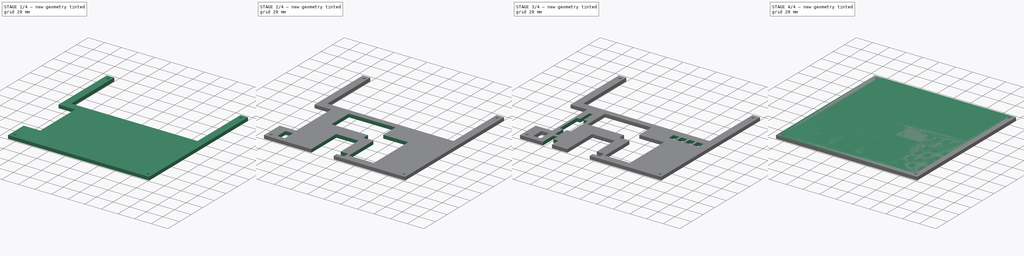
[diagram: build sequence overview — one tinted view per stage of 4, left to right]
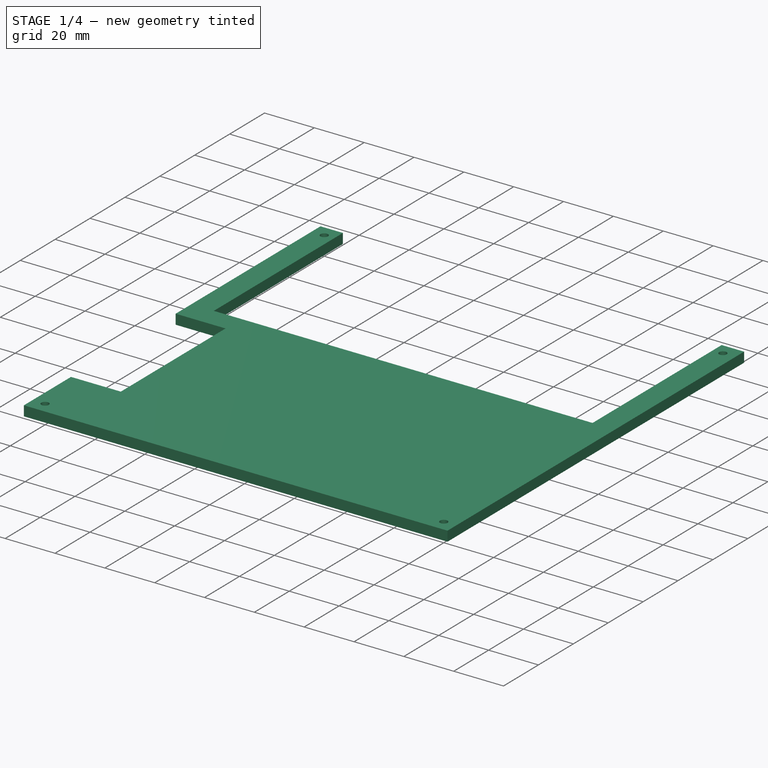
[diagram: stage 1 of 4 — iso view after this stage's code; geometry added in this stage tinted green]
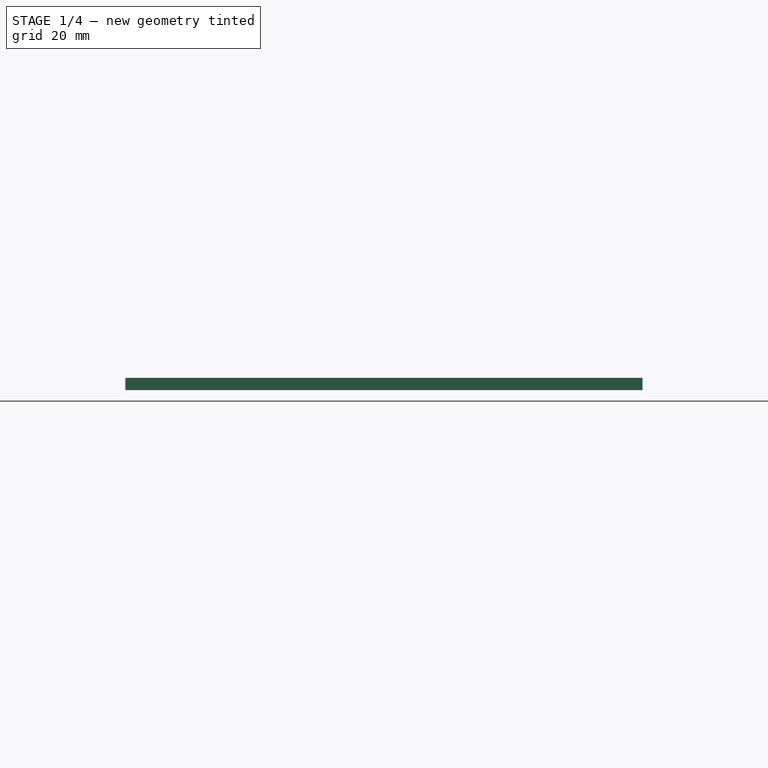
[diagram: stage 1 of 4 — front view after this stage's code; geometry added in this stage tinted green]
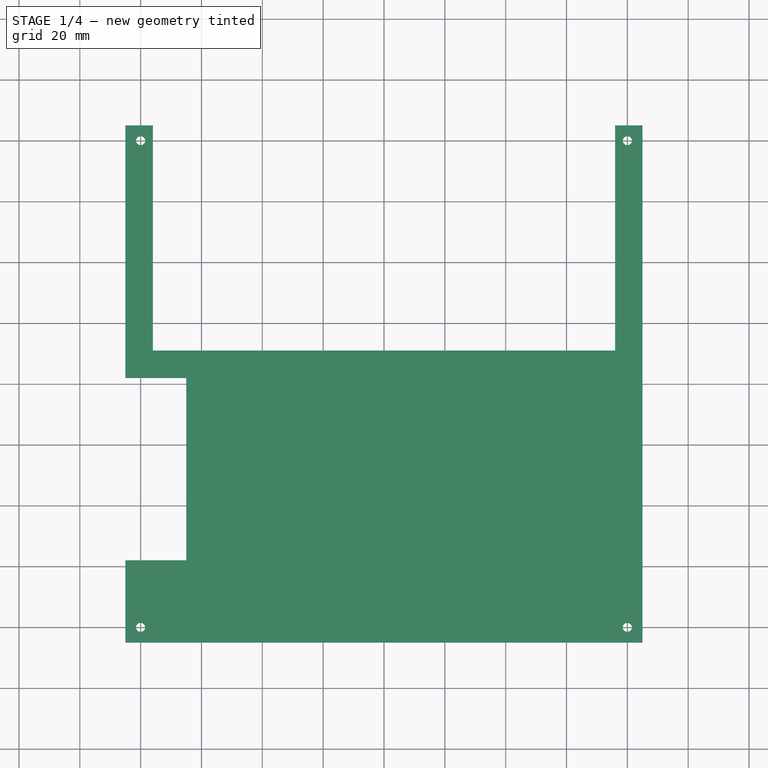
[diagram: stage 1 of 4 — top view after this stage's code; geometry added in this stage tinted green]
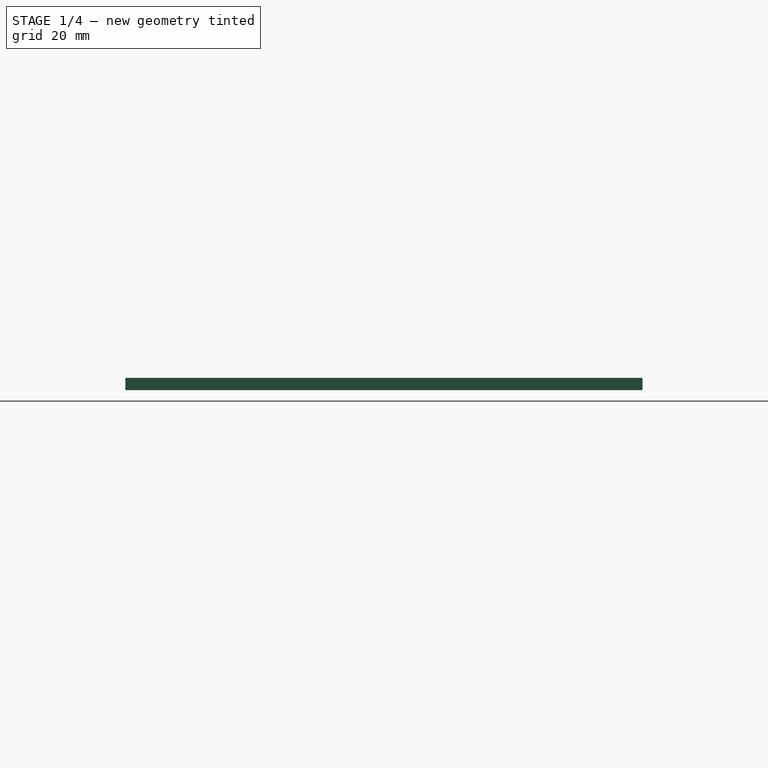
[diagram: stage 1 of 4 — right view after this stage's code; geometry added in this stage tinted green]
FCSTD DOCUMENT  (FreeCAD 0.21R33668 +26 (Git))
Label: AudioController
License: All rights reserved
LicenseURL: https://en.wikipedia.org/wiki/All_rights_reserved
objects: Sketcher::SketchObject×14, PartDesign::Pocket×12, PartDesign::Pad×2, PartDesign::Body×2, Part::Part2DObjectPython×2
note: 46 computed .brp shape members not serialized (recipe doc carries the construction recipe); baked Part::Feature solids carry a one-line shape summary decoded from their .brp

FEATURE [PartDesign::Body] Body  label="Bottom"
  Group = -> [Sketch,Pad,Sketch001,Pocket]
  Origin = -> Origin
  Tip = -> Pocket
FEATURE [Sketcher::SketchObject] Sketch002
  FullyConstrained = true
  MapMode = 5
  Support = -> [XY_Plane001]
  sketch-geometry (4):
    g0: LineSegment StartX=-85 StartY=85 StartZ=0 EndX=85 EndY=85 EndZ=0
    g1: LineSegment StartX=85 StartY=85 StartZ=0 EndX=85 EndY=-85 EndZ=0
    g2: LineSegment StartX=85 StartY=-85 StartZ=0 EndX=-85 EndY=-85 EndZ=0
    g3: LineSegment StartX=-85 StartY=-85 StartZ=0 EndX=-85 EndY=85 EndZ=0
  constraints (10):
    c: Coincident(g0,g1)
    c: Coincident(g1,g2)
    c: Coincident(g2,g3)
    c: Coincident(g3,g0)
    c: Horizontal(g2)
    c: Vertical(g1)
    c: Symmetric(g0,g2,g-1)
    c: Symmetric(g0,g0,g-2)
    c: Equal(g0,g3)
    c: DistanceX(g0,g0) = 170
FEATURE [PartDesign::Pad] Pad001
  Direction = (0,0,1)
  Length = 4
  Length2 = 10
  Profile = -> Sketch002
  ReferenceAxis = -> Sketch002 [N_Axis]
  Type = 0
FEATURE [Sketcher::SketchObject] Sketch003
  FullyConstrained = true
  MapMode = 5
  Placement = pos=(0,0,4) rot=(0,0,1;0rad)
  Support = -> [Pad001]
  sketch-geometry (4):
    g0: Circle CenterX=-80 CenterY=80 CenterZ=0 NormalX=0 NormalY=0 NormalZ=1 AngleXU=0 Radius=1.5
    g1: Circle CenterX=80 CenterY=80 CenterZ=0 NormalX=0 NormalY=0 NormalZ=1 AngleXU=0 Radius=1.5
    g2: Circle CenterX=80 CenterY=-80 CenterZ=0 NormalX=0 NormalY=0 NormalZ=1 AngleXU=0 Radius=1.5
    g3: Circle CenterX=-80 CenterY=-80 CenterZ=0 NormalX=0 NormalY=0 NormalZ=1 AngleXU=0 Radius=1.5
  constraints (9):
    c: Symmetric(g0,g3,g-1)
    c: Symmetric(g1,g0,g-2)
    c: Symmetric(g2,g3,g-2)
    c: Equal(g3,g2)
    c: Equal(g3,g1)
    c: Equal(g3,g0)
    c: Diameter(g3) = 3
    c: DistanceX(g0,g1) = 160
    c: DistanceY(g3,g0) = 160
FEATURE [PartDesign::Pocket] Pocket001
  BaseFeature = -> Pad001
  Direction = (0,0,-1)
  Length = 0
  Length2 = 5
  Profile = -> Sketch003
  ReferenceAxis = -> Sketch003 [N_Axis]
  Type = 3
  UpToFace = -> Pad001 [Face5]
FEATURE [Sketcher::SketchObject] Sketch004
  ExternalGeometry = -> [Pocket001]
  FullyConstrained = true
  MapMode = 5
  Placement = pos=(0,0,4) rot=(0,0,1;0rad)
  Support = -> [Pocket001]
  sketch-geometry (4):
    g0: LineSegment StartX=76 StartY=85 StartZ=0 EndX=-76 EndY=85 EndZ=0
    g1: LineSegment StartX=-76 StartY=85 StartZ=0 EndX=-76 EndY=11 EndZ=0
    g2: LineSegment StartX=76 StartY=85 StartZ=0 EndX=76 EndY=11 EndZ=0
    g3: LineSegment StartX=-76 StartY=11 StartZ=0 EndX=76 EndY=11 EndZ=0
  constraints (11):
    c: PointOnObject(g0,g-3)
    c: Coincident(g1,g0)
    c: Vertical(g1)
    c: Coincident(g2,g0)
    c: Vertical(g2)
    c: Coincident(g3,g1)
    c: Coincident(g3,g2)
    c: Horizontal(g3)
    c: DistanceX(g0,g0) = 152
    c: DistanceY(g2,g2) = 74
    c: Symmetric(g0,g0,g-2)
FEATURE [PartDesign::Pocket] Pocket002  label="SpeakerCutout"
  BaseFeature = -> Pocket001
  Direction = (0,0,-1)
  Length = 0
  Length2 = 5
  Profile = -> Sketch004
  ReferenceAxis = -> Sketch004 [N_Axis]
  Type = 3
  UpToFace = -> Pocket001 [Face4]
FEATURE [Sketcher::SketchObject] Sketch005
  ExternalGeometry = -> [Pocket002]
  FullyConstrained = true
  MapMode = 5
  Placement = pos=(0,0,4) rot=(0,0,1;0rad)
  Support = -> [Pocket002]
  sketch-geometry (4):
    g0: LineSegment StartX=-85 StartY=2 StartZ=0 EndX=-65 EndY=2 EndZ=0
    g1: LineSegment StartX=-65 StartY=2 StartZ=0 EndX=-65 EndY=-58 EndZ=0
    g2: LineSegment StartX=-65 StartY=-58 StartZ=0 EndX=-85 EndY=-58 EndZ=0
    g3: LineSegment StartX=-85 StartY=-58 StartZ=0 EndX=-85 EndY=2 EndZ=0
  constraints (12):
    c: Coincident(g0,g1)
    c: Coincident(g1,g2)
    c: Coincident(g2,g3)
    c: Coincident(g3,g0)
    c: Horizontal(g0)
    c: Horizontal(g2)
    c: Vertical(g1)
    c: Vertical(g3)
    c: PointOnObject(g0,g-3)
    c: DistanceY(g3,g3) = 60
    c: DistanceX(g0,g0) = 20
    c: DistanceY(g-3,g2) = 27
FEATURE [PartDesign::Pocket] Pocket003  label="BNCMisoMosiCutout"
  BaseFeature = -> Pocket002
  Direction = (0,0,-1)
  Length = 0
  Length2 = 5
  Profile = -> Sketch005
  ReferenceAxis = -> Sketch005 [N_Axis]
  Type = 3
  UpToFace = -> Pocket002 [Face2]
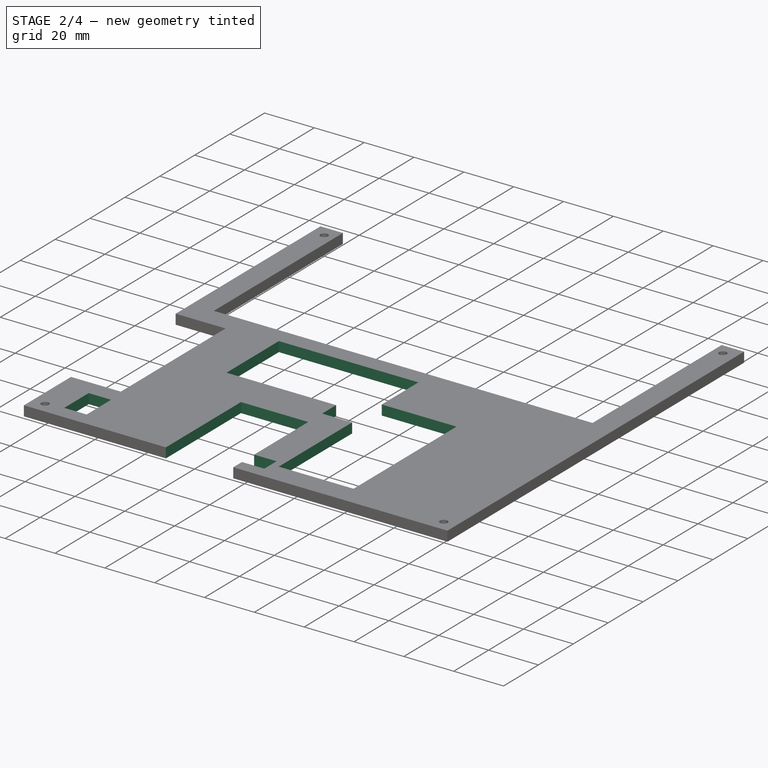
[diagram: stage 2 of 4 — iso view after this stage's code; geometry added in this stage tinted green]
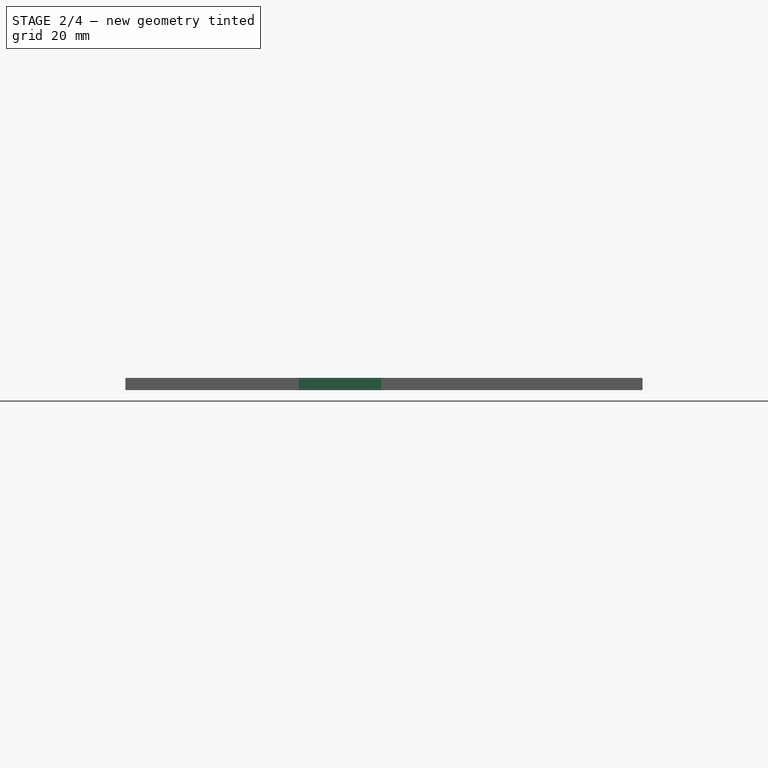
[diagram: stage 2 of 4 — front view after this stage's code; geometry added in this stage tinted green]
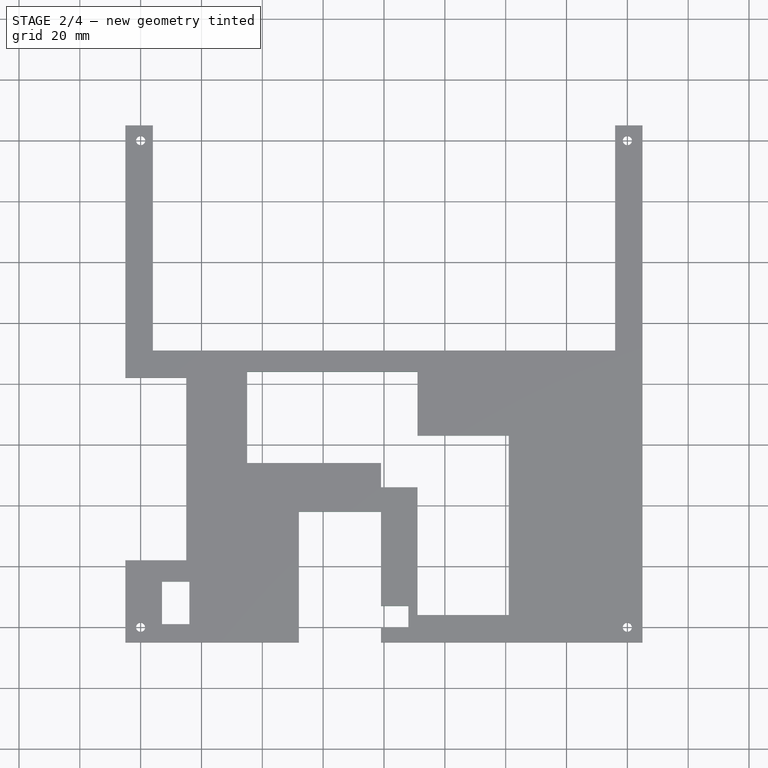
[diagram: stage 2 of 4 — top view after this stage's code; geometry added in this stage tinted green]
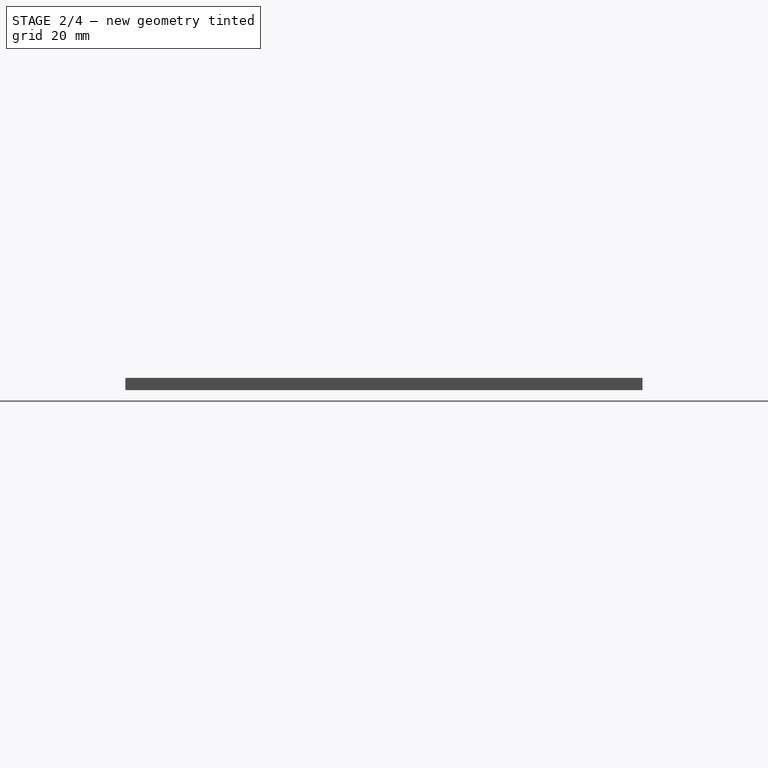
[diagram: stage 2 of 4 — right view after this stage's code; geometry added in this stage tinted green]
FEATURE [Sketcher::SketchObject] Sketch006
  ExternalGeometry = -> [Pocket003]
  FullyConstrained = true
  MapMode = 5
  Placement = pos=(0,0,4) rot=(0,0,1;0rad)
  Support = -> [Pocket003]
  sketch-geometry (4):
    g0: LineSegment StartX=-73 StartY=-65 StartZ=0 EndX=-64 EndY=-65 EndZ=0
    g1: LineSegment StartX=-64 StartY=-65 StartZ=0 EndX=-64 EndY=-79 EndZ=0
    g2: LineSegment StartX=-64 StartY=-79 StartZ=0 EndX=-73 EndY=-79 EndZ=0
    g3: LineSegment StartX=-73 StartY=-79 StartZ=0 EndX=-73 EndY=-65 EndZ=0
  constraints (12):
    c: Coincident(g0,g1)
    c: Coincident(g1,g2)
    c: Coincident(g2,g3)
    c: Coincident(g3,g0)
    c: Horizontal(g0)
    c: Horizontal(g2)
    c: Vertical(g1)
    c: Vertical(g3)
    c: DistanceX(g0,g0) = 9
    c: DistanceY(g1,g1) = 14
    c: DistanceY(g-4,g2) = 6
    c: DistanceX(g-4,g2) = 12
FEATURE [PartDesign::Pocket] Pocket004  label="SwitchCutout"
  BaseFeature = -> Pocket003
  Direction = (0,0,-1)
  Length = 0
  Length2 = 5
  Profile = -> Sketch006
  ReferenceAxis = -> Sketch006 [N_Axis]
  Type = 3
  UpToFace = -> Pocket003 [Face2]
FEATURE [Sketcher::SketchObject] Sketch007
  ExternalGeometry = -> [Pocket004]
  FullyConstrained = true
  MapMode = 5
  Placement = pos=(0,0,4) rot=(0,0,1;0rad)
  Support = -> [Pocket004]
  sketch-geometry (10):
    g0: LineSegment StartX=11 StartY=-76 StartZ=0 EndX=41 EndY=-76 EndZ=0
    g1: LineSegment StartX=41 StartY=-76 StartZ=0 EndX=41 EndY=-17 EndZ=0
    g2: LineSegment StartX=41 StartY=-17 StartZ=0 EndX=11 EndY=-17 EndZ=0
    g3: LineSegment StartX=11 StartY=-17 StartZ=0 EndX=11 EndY=4 EndZ=0
    g4: LineSegment StartX=11 StartY=4 StartZ=0 EndX=-45 EndY=4 EndZ=0
    g5: LineSegment StartX=-45 StartY=4 StartZ=0 EndX=-45 EndY=-26 EndZ=0
    g6: LineSegment StartX=-45 StartY=-26 StartZ=0 EndX=-1 EndY=-26 EndZ=0
    g7: LineSegment StartX=-1 StartY=-26 StartZ=0 EndX=-1 EndY=-34 EndZ=0
    g8: LineSegment StartX=-1 StartY=-34 StartZ=0 EndX=11 EndY=-34 EndZ=0
    g9: LineSegment StartX=11 StartY=-34 StartZ=0 EndX=11 EndY=-76 EndZ=0
  constraints (30):
    c: Horizontal(g0)
    c: Coincident(g1,g0)
    c: Vertical(g1)
    c: Coincident(g2,g1)
    c: Horizontal(g2)
    c: Coincident(g3,g2)
    c: Vertical(g3)
    c: Coincident(g4,g3)
    c: Horizontal(g4)
    c: Coincident(g5,g4)
    c: Vertical(g5)
    c: Coincident(g6,g5)
    c: Horizontal(g6)
    c: Coincident(g7,g6)
    c: Vertical(g7)
    c: Coincident(g8,g7)
    c: Horizontal(g8)
    c: Coincident(g9,g8)
    c: Coincident(g9,g0)
    c: Vertical(g9)
    c: Equal(g2,g0)
    c: DistanceX(g4,g4) = 56
    c: DistanceY(g1,g1) = 59
    c: DistanceX(g0,g0) = 30
    c: DistanceY(g5,g5) = 30
    c: DistanceY(g7,g7) = 8
    c: DistanceX(g8,g8) = 12
    c: DistanceX(g0,g-3) = 44
    c: DistanceY(g-3,g0) = 9
    c: DistanceY(g3,g3) = 21
FEATURE [PartDesign::Pocket] Pocket005  label="ESPCutout"
  BaseFeature = -> Pocket004
  Direction = (0,0,-1)
  Length = 0
  Length2 = 5
  Profile = -> Sketch007
  ReferenceAxis = -> Sketch007 [N_Axis]
  Type = 3
  UpToFace = -> Pocket004 [Face2]
FEATURE [Sketcher::SketchObject] Sketch008
  ExternalGeometry = -> [Pocket005]
  FullyConstrained = true
  MapMode = 5
  Placement = pos=(0,0,4) rot=(0,0,1;0rad)
  Support = -> [Pocket005]
  sketch-geometry (8):
    g0: LineSegment StartX=-28 StartY=-85 StartZ=0 EndX=-1 EndY=-85 EndZ=0
    g1: LineSegment StartX=-1 StartY=-85 StartZ=0 EndX=-1 EndY=-80 EndZ=0
    g2: LineSegment StartX=-1 StartY=-80 StartZ=0 EndX=8 EndY=-80 EndZ=0
    g3: LineSegment StartX=8 StartY=-80 StartZ=0 EndX=8 EndY=-73 EndZ=0
    g4: LineSegment StartX=8 StartY=-73 StartZ=0 EndX=-1 EndY=-73 EndZ=0
    g5: LineSegment StartX=-1 StartY=-73 StartZ=0 EndX=-1 EndY=-42 EndZ=0
    g6: LineSegment StartX=-1 StartY=-42 StartZ=0 EndX=-28 EndY=-42 EndZ=0
    g7: LineSegment StartX=-28 StartY=-42 StartZ=0 EndX=-28 EndY=-85 EndZ=0
  constraints (24):
    c: PointOnObject(g0,g-3)
    c: Horizontal(g0)
    c: Coincident(g1,g0)
    c: Vertical(g1)
    c: Coincident(g2,g1)
    c: Horizontal(g2)
    c: Coincident(g3,g2)
    c: Vertical(g3)
    c: Coincident(g4,g3)
    c: Horizontal(g4)
    c: Coincident(g5,g4)
    c: Vertical(g5)
    c: Coincident(g6,g5)
    c: Horizontal(g6)
    c: Coincident(g7,g6)
    c: Coincident(g7,g0)
    c: Vertical(g7)
    c: Equal(g0,g6)
    c: DistanceX(g0,g0) = 27
    c: DistanceY(g7,g7) = 43
    c: DistanceX(g4,g4) = 9
    c: DistanceY(g3,g3) = 7
    c: DistanceY(g1,g1) = 5
    c: DistanceX(g-3,g0) = 57
FEATURE [PartDesign::Pocket] Pocket006  label="SDCardCutout"
  BaseFeature = -> Pocket005
  Direction = (0,0,-1)
  Length = 0
  Length2 = 5
  Profile = -> Sketch008
  ReferenceAxis = -> Sketch008 [N_Axis]
  Type = 3
  UpToFace = -> Pocket005 [Face2]
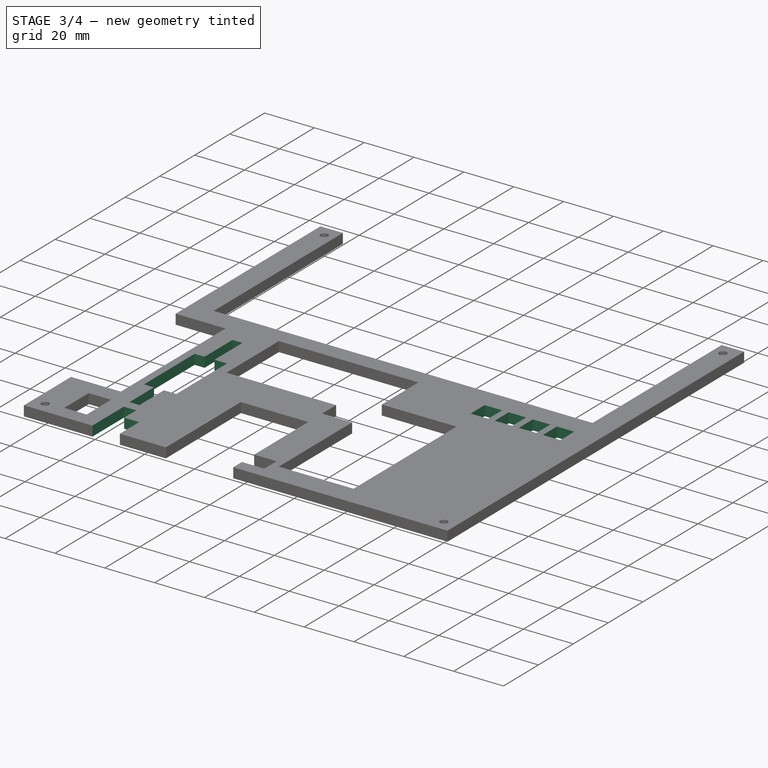
[diagram: stage 3 of 4 — iso view after this stage's code; geometry added in this stage tinted green]
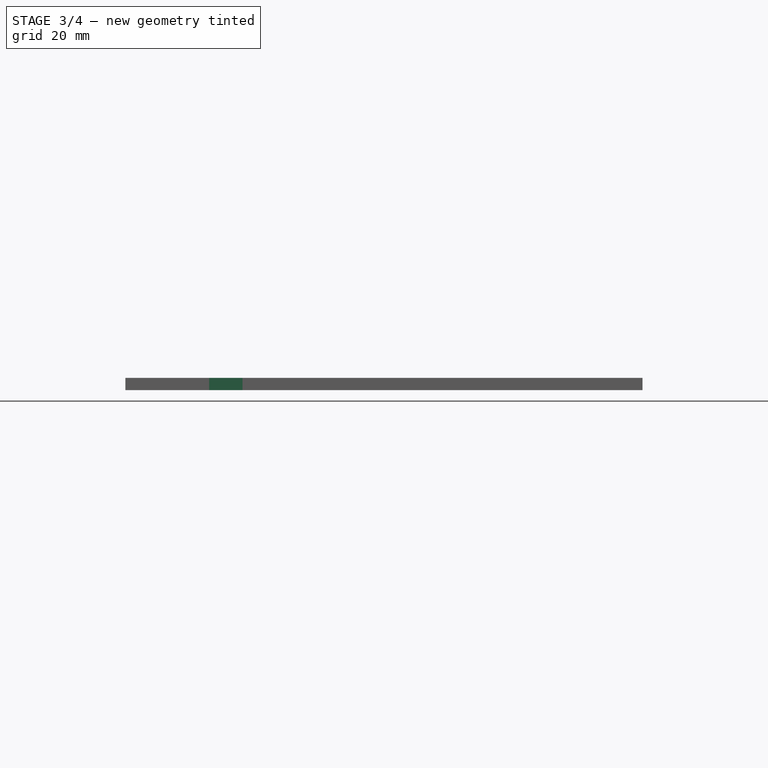
[diagram: stage 3 of 4 — front view after this stage's code; geometry added in this stage tinted green]
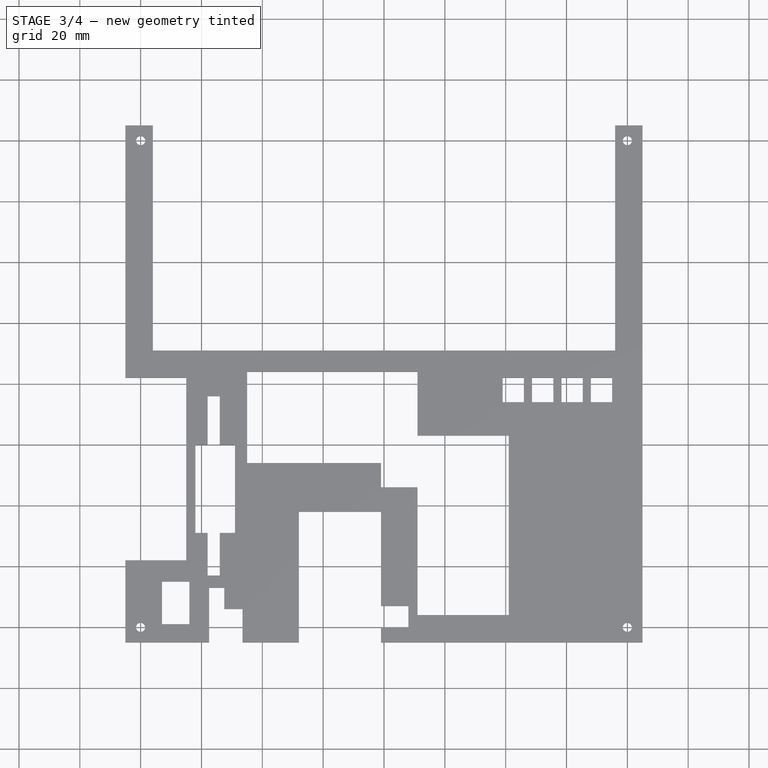
[diagram: stage 3 of 4 — top view after this stage's code; geometry added in this stage tinted green]
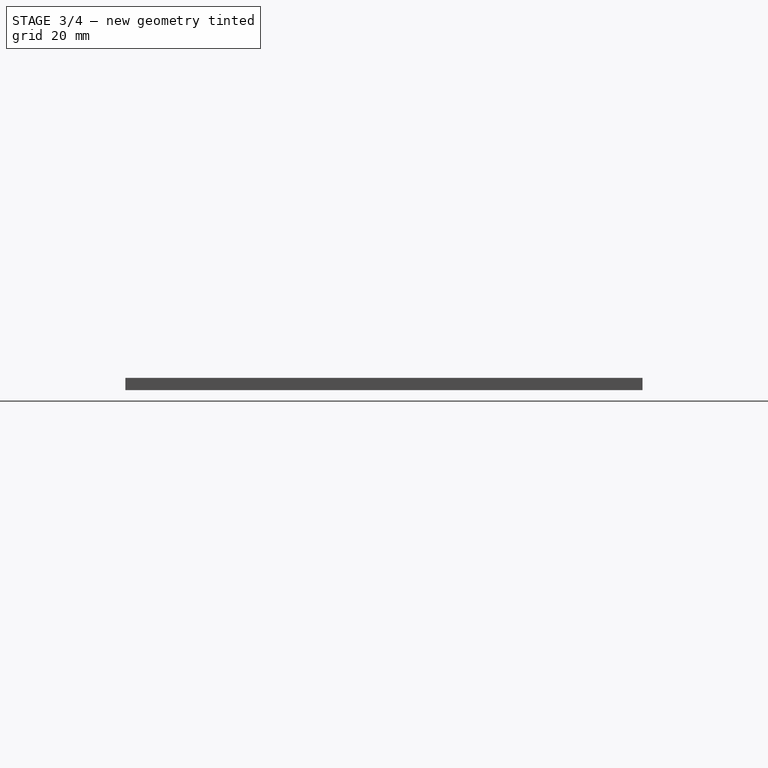
[diagram: stage 3 of 4 — right view after this stage's code; geometry added in this stage tinted green]
FEATURE [Sketcher::SketchObject] Sketch009
  ExternalGeometry = -> [Pocket006]
  FullyConstrained = true
  MapMode = 5
  Placement = pos=(0,0,4) rot=(0,0,1;0rad)
  Support = -> [Pocket006]
  sketch-geometry (6):
    g0: LineSegment StartX=-46.5 StartY=-85 StartZ=0 EndX=-57.5 EndY=-85 EndZ=0
    g1: LineSegment StartX=-57.5 StartY=-85 StartZ=0 EndX=-57.5 EndY=-67 EndZ=0
    g2: LineSegment StartX=-57.5 StartY=-67 StartZ=0 EndX=-52.5 EndY=-67 EndZ=0
    g3: LineSegment StartX=-52.5 StartY=-67 StartZ=0 EndX=-52.5 EndY=-74 EndZ=0
    g4: LineSegment StartX=-52.5 StartY=-74 StartZ=0 EndX=-46.5 EndY=-74 EndZ=0
    g5: LineSegment StartX=-46.5 StartY=-74 StartZ=0 EndX=-46.5 EndY=-85 EndZ=0
  constraints (18):
    c: PointOnObject(g0,g-3)
    c: Horizontal(g0)
    c: Coincident(g1,g0)
    c: Vertical(g1)
    c: Coincident(g2,g1)
    c: Horizontal(g2)
    c: Coincident(g3,g2)
    c: Vertical(g3)
    c: Coincident(g4,g3)
    c: Horizontal(g4)
    c: Coincident(g5,g4)
    c: Coincident(g5,g0)
    c: Vertical(g5)
    c: DistanceX(g0,g0) = 11
    c: DistanceY(g5,g5) = 11
    c: DistanceY(g1,g1) = 18
    c: DistanceX(g2,g2) = 5
    c: DistanceX(g-3,g0) = 27.5
FEATURE [PartDesign::Pocket] Pocket007  label="PowerSocketCutout"
  BaseFeature = -> Pocket006
  Direction = (0,0,-1)
  Length = 0
  Length2 = 5
  Profile = -> Sketch009
  ReferenceAxis = -> Sketch009 [N_Axis]
  Type = 3
  UpToFace = -> Pocket006 [Face2]
FEATURE [Sketcher::SketchObject] Sketch010
  ExternalGeometry = -> [Pocket007]
  FullyConstrained = true
  MapMode = 5
  Placement = pos=(0,0,4) rot=(0,0,1;0rad)
  Support = -> [Pocket007]
  sketch-geometry (12):
    g0: LineSegment StartX=-58 StartY=-4 StartZ=0 EndX=-54 EndY=-4 EndZ=0
    g1: LineSegment StartX=-58 StartY=-4 StartZ=0 EndX=-58 EndY=-20 EndZ=0
    g2: LineSegment StartX=-58 StartY=-20 StartZ=0 EndX=-62 EndY=-20 EndZ=0
    g3: LineSegment StartX=-62 StartY=-20 StartZ=0 EndX=-62 EndY=-49 EndZ=0
    g4: LineSegment StartX=-62 StartY=-49 StartZ=0 EndX=-58 EndY=-49 EndZ=0
    g5: LineSegment StartX=-58 StartY=-49 StartZ=0 EndX=-58 EndY=-63 EndZ=0
    g6: LineSegment StartX=-58 StartY=-63 StartZ=0 EndX=-54 EndY=-63 EndZ=0
    g7: LineSegment StartX=-54 StartY=-63 StartZ=0 EndX=-54 EndY=-49 EndZ=0
    g8: LineSegment StartX=-54 StartY=-49 StartZ=0 EndX=-49 EndY=-49 EndZ=0
    g9: LineSegment StartX=-49 StartY=-49 StartZ=0 EndX=-49 EndY=-20 EndZ=0
    g10: LineSegment StartX=-49 StartY=-20 StartZ=0 EndX=-54 EndY=-20 EndZ=0
    g11: LineSegment StartX=-54 StartY=-20 StartZ=0 EndX=-54 EndY=-4 EndZ=0
  constraints (36):
    c: Horizontal(g0)
    c: Coincident(g1,g0)
    c: Vertical(g1)
    c: Coincident(g2,g1)
    c: Horizontal(g2)
    c: Vertical(g3)
    c: Coincident(g4,g3)
    c: Horizontal(g4)
    c: Coincident(g5,g4)
    c: Vertical(g5)
    c: Coincident(g6,g5)
    c: Horizontal(g6)
    c: Coincident(g7,g6)
    c: Vertical(g7)
    c: Coincident(g8,g7)
    c: Coincident(g9,g8)
    c: Vertical(g9)
    c: Coincident(g10,g9)
    c: Coincident(g11,g0)
    c: Coincident(g11,g10)
    c: Vertical(g11)
    c: Coincident(g3,g2)
    c: Equal(g3,g9)
    c: Equal(g0,g6)
    c: Equal(g2,g4)
    c: Equal(g11,g1)
    c: DistanceX(g6,g6) = 4
    c: DistanceX(g3,g8) = 13
    c: DistanceY(g7,g7) = 14
    c: DistanceY(g11,g11) = 16
    c: DistanceY(g9,g9) = 29
    c: DistanceY(g-3,g3) = 36
    c: DistanceX(g-3,g3) = 23
    c: Equal(g10,g8)
    c: Horizontal(g10)
    c: DistanceX(g-3,g4) = 27
FEATURE [PartDesign::Pocket] Pocket008  label="HeaderLoadResCutout"
  BaseFeature = -> Pocket007
  Direction = (0,0,-1)
  Length = 0
  Length2 = 5
  Profile = -> Sketch010
  ReferenceAxis = -> Sketch010 [N_Axis]
  Type = 3
  UpToFace = -> Pocket007 [Face2]
FEATURE [Sketcher::SketchObject] Sketch011
  ExternalGeometry = -> [Pocket008]
  FullyConstrained = false
  MapMode = 5
  Placement = pos=(0,0,4) rot=(0,0,1;0rad)
  Support = -> [Pocket008]
  sketch-geometry (20):
    g0: LineSegment StartX=68 StartY=2 StartZ=0 EndX=75 EndY=2 EndZ=0
    g1: LineSegment StartX=75 StartY=2 StartZ=0 EndX=75 EndY=-6 EndZ=0
    g2: LineSegment StartX=75 StartY=-6 StartZ=0 EndX=68 EndY=-6 EndZ=0
    g3: LineSegment StartX=68 StartY=-6 StartZ=0 EndX=68 EndY=2 EndZ=0
    g4: LineSegment StartX=58.3333 StartY=2 StartZ=0 EndX=65.3333 EndY=2 EndZ=0
    g5: LineSegment StartX=65.3333 StartY=2 StartZ=0 EndX=65.3333 EndY=-6 EndZ=0
    g6: LineSegment StartX=65.3333 StartY=-6 StartZ=0 EndX=58.3333 EndY=-6 EndZ=0
    g7: LineSegment StartX=58.3333 StartY=-6 StartZ=0 EndX=58.3333 EndY=2 EndZ=0
    g8: LineSegment StartX=48.6667 StartY=2 StartZ=0 EndX=55.6667 EndY=2 EndZ=0
    g9: LineSegment StartX=55.6667 StartY=2 StartZ=0 EndX=55.6667 EndY=-6 EndZ=0
    g10: LineSegment StartX=55.6667 StartY=-6 StartZ=0 EndX=48.6667 EndY=-6 EndZ=0
    g11: LineSegment StartX=48.6667 StartY=-6 StartZ=0 EndX=48.6667 EndY=2 EndZ=0
    g12: LineSegment StartX=39 StartY=2 StartZ=0 EndX=46 EndY=2 EndZ=0
    g13: LineSegment StartX=46 StartY=2 StartZ=0 EndX=46 EndY=-6 EndZ=0
    g14: LineSegment StartX=46 StartY=-6 StartZ=0 EndX=39 EndY=-6 EndZ=0
    g15: LineSegment StartX=39 StartY=-6 StartZ=0 EndX=39 EndY=2 EndZ=0
    g16: LineSegment StartX=19.83 StartY=-2 StartZ=0 EndX=80.543 EndY=-2 EndZ=0
    g17: LineSegment StartX=46 StartY=2 StartZ=0 EndX=48.6667 EndY=2 EndZ=0
    g18: LineSegment StartX=55.6667 StartY=2 StartZ=0 EndX=58.3333 EndY=2 EndZ=0
    g19: LineSegment StartX=65.3333 StartY=2 StartZ=0 EndX=68 EndY=2 EndZ=0
  constraints (52):
    c: Coincident(g0,g1)
    c: Coincident(g1,g2)
    c: Coincident(g2,g3)
    c: Coincident(g3,g0)
    c: Horizontal(g0)
    c: Horizontal(g2)
    c: Vertical(g1)
    c: Coincident(g4,g5)
    c: Coincident(g5,g6)
    c: Coincident(g6,g7)
    c: Coincident(g7,g4)
    c: Horizontal(g4)
    c: Horizontal(g6)
    c: Vertical(g5)
    c: Coincident(g8,g9)
    c: Coincident(g9,g10)
    c: Coincident(g10,g11)
    c: Coincident(g11,g8)
    c: Horizontal(g8)
    c: Horizontal(g10)
    c: Vertical(g9)
    c: Coincident(g12,g13)
    c: Coincident(g13,g14)
    c: Coincident(g14,g15)
    c: Coincident(g15,g12)
    c: Horizontal(g12)
    c: Horizontal(g14)
    c: Vertical(g13)
    c: Horizontal(g16)
    c: Symmetric(g12,g14,g16)
    c: Symmetric(g8,g10,g16)
    c: Symmetric(g4,g6,g16)
    c: Symmetric(g0,g2,g16)
    c: Coincident(g17,g12)
    c: Coincident(g17,g8)
    c: Coincident(g18,g8)
    c: Coincident(g18,g4)
    c: Coincident(g19,g4)
    c: Coincident(g19,g0)
    c: DistanceY(g1,g1) = 8
    c: DistanceY(g-3,g16) = 83
    c: DistanceX(g12,g-3) = 46
    c: DistanceX(g0,g-3) = 10
    c: Equal(g18,g19)
    c: Equal(g19,g17)
    c: Equal(g10,g14)
    c: Equal(g14,g6)
    c: Equal(g6,g2)
    c: DistanceX(g10,g10) = 7
    c: Equal(g3,g7)
    c: Equal(g7,g11)
    c: Equal(g11,g15)
FEATURE [PartDesign::Pocket] Pocket009  label="LedPlayerCutout"
  BaseFeature = -> Pocket008
  Direction = (0,0,-1)
  Length = 0
  Length2 = 5
  Profile = -> Sketch011
  ReferenceAxis = -> Sketch011 [N_Axis]
  Type = 3
  UpToFace = -> Pocket008 [Face2]
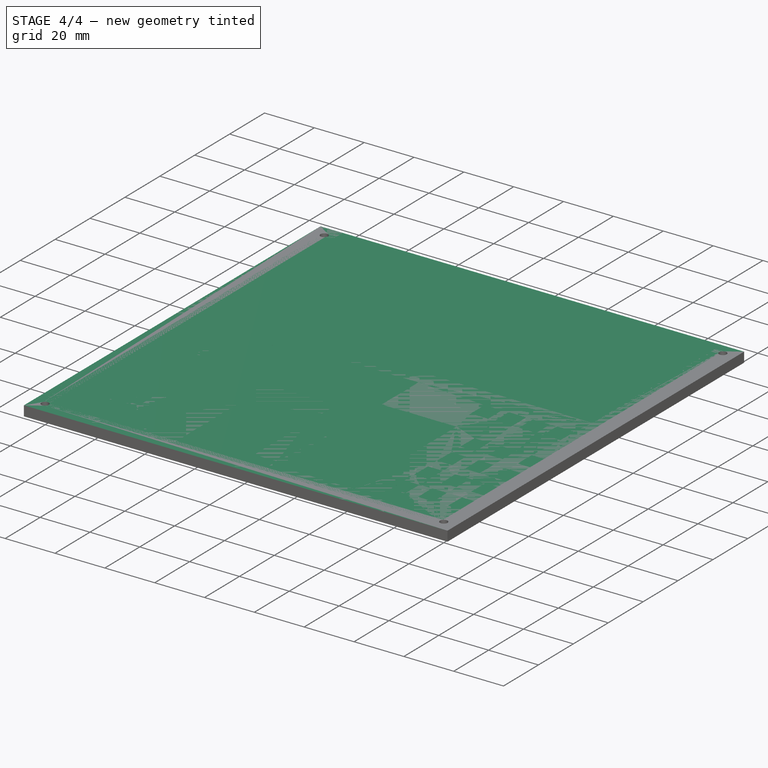
[diagram: stage 4 of 4 — iso view after this stage's code; geometry added in this stage tinted green]
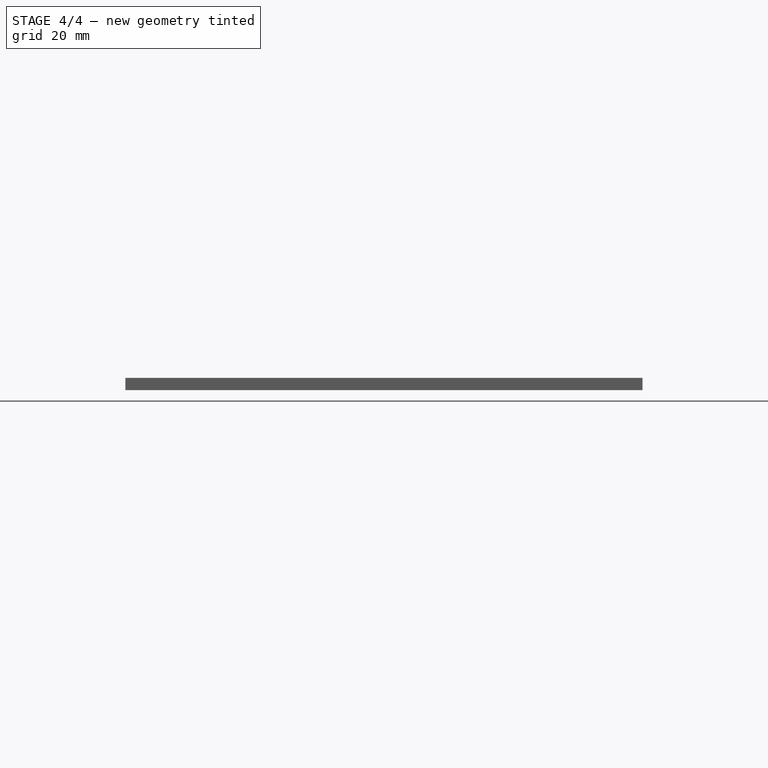
[diagram: stage 4 of 4 — front view after this stage's code; geometry added in this stage tinted green]
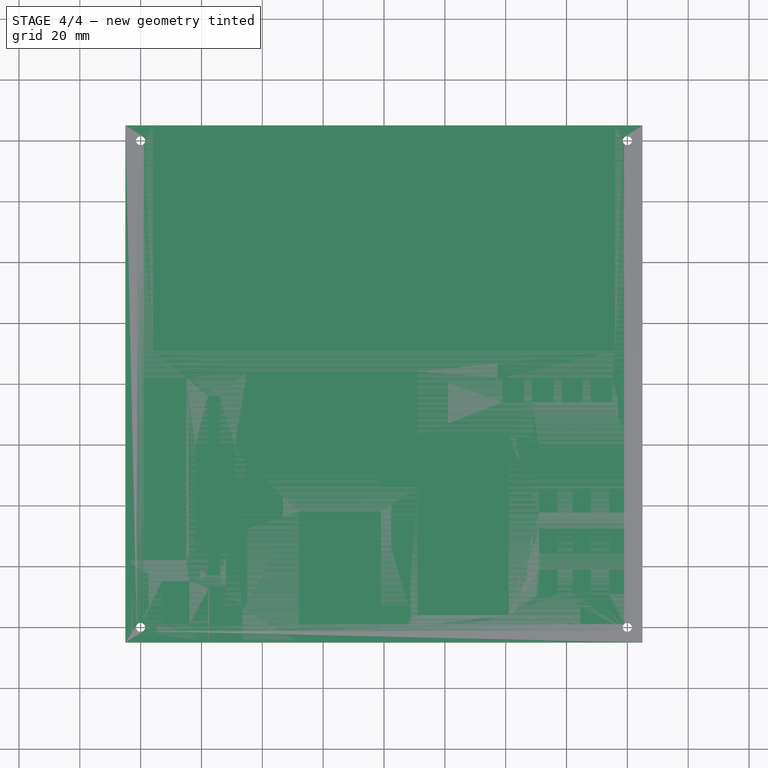
[diagram: stage 4 of 4 — top view after this stage's code; geometry added in this stage tinted green]
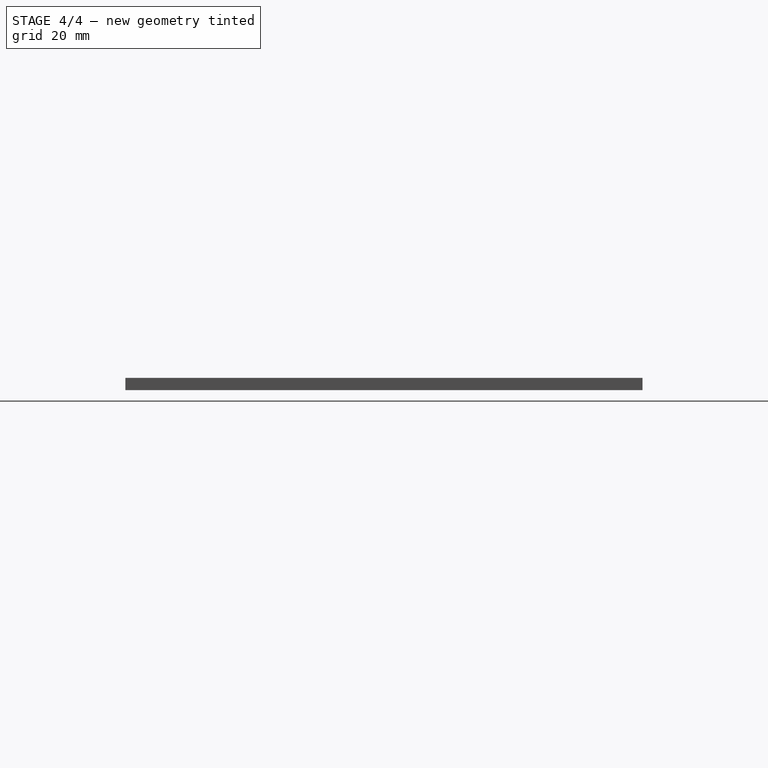
[diagram: stage 4 of 4 — right view after this stage's code; geometry added in this stage tinted green]
FEATURE [Sketcher::SketchObject] Sketch
  FullyConstrained = true
  MapMode = 5
  Support = -> [XY_Plane]
  sketch-geometry (4):
    g0: LineSegment StartX=-85 StartY=85 StartZ=0 EndX=85 EndY=85 EndZ=0
    g1: LineSegment StartX=85 StartY=85 StartZ=0 EndX=85 EndY=-85 EndZ=0
    g2: LineSegment StartX=85 StartY=-85 StartZ=0 EndX=-85 EndY=-85 EndZ=0
    g3: LineSegment StartX=-85 StartY=-85 StartZ=0 EndX=-85 EndY=85 EndZ=0
  constraints (10):
    c: Coincident(g0,g1)
    c: Coincident(g1,g2)
    c: Coincident(g2,g3)
    c: Coincident(g3,g0)
    c: Horizontal(g2)
    c: Vertical(g1)
    c: Equal(g0,g1)
    c: Symmetric(g0,g0,g-2)
    c: Symmetric(g0,g2,g-1)
    c: DistanceX(g0,g0) = 170
FEATURE [PartDesign::Pad] Pad
  Direction = (0,0,1)
  Length = 4
  Length2 = 10
  Profile = -> Sketch
  ReferenceAxis = -> Sketch [N_Axis]
  Type = 0
FEATURE [Sketcher::SketchObject] Sketch001
  FullyConstrained = true
  MapMode = 5
  Placement = pos=(0,0,4) rot=(0,0,1;0rad)
  Support = -> [Pad]
  sketch-geometry (4):
    g0: Circle CenterX=-80 CenterY=80 CenterZ=0 NormalX=0 NormalY=0 NormalZ=1 AngleXU=0 Radius=1.5
    g1: Circle CenterX=80 CenterY=80 CenterZ=0 NormalX=0 NormalY=0 NormalZ=1 AngleXU=0 Radius=1.5
    g2: Circle CenterX=80 CenterY=-80 CenterZ=0 NormalX=0 NormalY=0 NormalZ=1 AngleXU=0 Radius=1.5
    g3: Circle CenterX=-80 CenterY=-80 CenterZ=0 NormalX=0 NormalY=0 NormalZ=1 AngleXU=0 Radius=1.5
  constraints (9):
    c: Symmetric(g0,g1,g-2)
    c: Symmetric(g3,g0,g-1)
    c: Symmetric(g2,g3,g-2)
    c: DistanceX(g0,g1) = 160
    c: DistanceY(g3,g0) = 160
    c: Equal(g0,g1)
    c: Equal(g0,g2)
    c: Equal(g0,g3)
    c: Diameter(g0) = 3
FEATURE [PartDesign::Pocket] Pocket
  BaseFeature = -> Pad
  Direction = (0,0,-1)
  Length = 0
  Length2 = 5
  Profile = -> Sketch001
  ReferenceAxis = -> Sketch001 [N_Axis]
  Type = 2
FEATURE [Sketcher::SketchObject] Sketch012
  ExternalGeometry = -> [Pocket009]
  FullyConstrained = false
  MapMode = 5
  Placement = pos=(0,0,4) rot=(0,0,1;0rad)
  Support = -> [Pocket009]
  sketch-geometry (41):
    g0: LineSegment StartX=51 StartY=-21 StartZ=0 EndX=57 EndY=-21 EndZ=0
    g1: LineSegment StartX=57 StartY=-21 StartZ=0 EndX=57 EndY=-29 EndZ=0
    g2: LineSegment StartX=57 StartY=-29 StartZ=0 EndX=51 EndY=-29 EndZ=0
    g3: LineSegment StartX=51 StartY=-29 StartZ=0 EndX=51 EndY=-21 EndZ=0
    g4: LineSegment StartX=51 StartY=-34.3333 StartZ=0 EndX=57 EndY=-34.3333 EndZ=0
    g5: LineSegment StartX=57 StartY=-34.3333 StartZ=0 EndX=57 EndY=-42.3333 EndZ=0
    g6: LineSegment StartX=57 StartY=-42.3333 StartZ=0 EndX=51 EndY=-42.3333 EndZ=0
    g7: LineSegment StartX=51 StartY=-42.3333 StartZ=0 EndX=51 EndY=-34.3333 EndZ=0
    g8: LineSegment StartX=51 StartY=-47.6667 StartZ=0 EndX=57 EndY=-47.6667 EndZ=0
    g9: LineSegment StartX=57 StartY=-47.6667 StartZ=0 EndX=57 EndY=-55.6667 EndZ=0
    g10: LineSegment StartX=57 StartY=-55.6667 StartZ=0 EndX=51 EndY=-55.6667 EndZ=0
    g11: LineSegment StartX=51 StartY=-55.6667 StartZ=0 EndX=51 EndY=-47.6667 EndZ=0
    g12: LineSegment StartX=51 StartY=-61 StartZ=0 EndX=57 EndY=-61 EndZ=0
    g13: LineSegment StartX=57 StartY=-61 StartZ=0 EndX=57 EndY=-69 EndZ=0
    g14: LineSegment StartX=57 StartY=-69 StartZ=0 EndX=51 EndY=-69 EndZ=0
    g15: LineSegment StartX=51 StartY=-69 StartZ=0 EndX=51 EndY=-61 EndZ=0
    g16: LineSegment StartX=62 StartY=-21 StartZ=0 EndX=68 EndY=-21 EndZ=0
    g17: LineSegment StartX=68 StartY=-21 StartZ=0 EndX=68 EndY=-29 EndZ=0
    g18: LineSegment StartX=68 StartY=-29 StartZ=0 EndX=62 EndY=-29 EndZ=0
    g19: LineSegment StartX=62 StartY=-29 StartZ=0 EndX=62 EndY=-21 EndZ=0
    g20: LineSegment StartX=62 StartY=-34.3333 StartZ=0 EndX=68 EndY=-34.3333 EndZ=0
    g21: LineSegment StartX=68 StartY=-34.3333 StartZ=0 EndX=68 EndY=-42.3333 EndZ=0
    g22: LineSegment StartX=68 StartY=-42.3333 StartZ=0 EndX=62 EndY=-42.3333 EndZ=0
    g23: LineSegment StartX=62 StartY=-42.3333 StartZ=0 EndX=62 EndY=-34.3333 EndZ=0
    g24: LineSegment StartX=62 StartY=-47.6667 StartZ=0 EndX=68 EndY=-47.6667 EndZ=0
    g25: LineSegment StartX=68 StartY=-47.6667 StartZ=0 EndX=68 EndY=-55.6667 EndZ=0
    g26: LineSegment StartX=68 StartY=-55.6667 StartZ=0 EndX=62 EndY=-55.6667 EndZ=0
    g27: LineSegment StartX=62 StartY=-55.6667 StartZ=0 EndX=62 EndY=-47.6667 EndZ=0
    g28: LineSegment StartX=62 StartY=-61 StartZ=0 EndX=68 EndY=-61 EndZ=0
    g29: LineSegment StartX=68 StartY=-61 StartZ=0 EndX=68 EndY=-69 EndZ=0
    g30: LineSegment StartX=68 StartY=-69 StartZ=0 EndX=62 EndY=-69 EndZ=0
    g31: LineSegment StartX=62 StartY=-69 StartZ=0 EndX=62 EndY=-61 EndZ=0
    g32: LineSegment StartX=54 StartY=-12.8943 StartZ=0 EndX=54 EndY=-74.7827 EndZ=0
    g33: LineSegment StartX=65 StartY=-13.056 StartZ=0 EndX=65 EndY=-75.8501 EndZ=0
    g34: LineSegment StartX=57 StartY=-61 StartZ=0 EndX=62 EndY=-61 EndZ=0
    g35: LineSegment StartX=57 StartY=-47.6667 StartZ=0 EndX=62 EndY=-47.6667 EndZ=0
    g36: LineSegment StartX=57 StartY=-34.3333 StartZ=0 EndX=62 EndY=-34.3333 EndZ=0
    g37: LineSegment StartX=57 StartY=-21 StartZ=0 EndX=62 EndY=-21 EndZ=0
    g38: LineSegment StartX=57 StartY=-29 StartZ=0 EndX=57 EndY=-34.3333 EndZ=0
    g39: LineSegment StartX=57 StartY=-42.3333 StartZ=0 EndX=57 EndY=-47.6667 EndZ=0
    g40: LineSegment StartX=57 StartY=-55.6667 StartZ=0 EndX=57 EndY=-61 EndZ=0
  constraints (106):
    c: Coincident(g0,g1)
    c: Coincident(g1,g2)
    c: Coincident(g2,g3)
    c: Coincident(g3,g0)
    c: Horizontal(g0)
    c: Vertical(g1)
    c: Vertical(g3)
    c: Coincident(g4,g5)
    c: Coincident(g5,g6)
    c: Coincident(g6,g7)
    c: Coincident(g7,g4)
    c: Horizontal(g4)
    c: Vertical(g5)
    c: Vertical(g7)
    c: Coincident(g8,g9)
    c: Coincident(g9,g10)
    c: Coincident(g10,g11)
    c: Coincident(g11,g8)
    c: Horizontal(g8)
    c: Vertical(g9)
    c: Vertical(g11)
    c: Coincident(g12,g13)
    c: Coincident(g13,g14)
    c: Coincident(g14,g15)
    c: Coincident(g15,g12)
    c: Horizontal(g12)
    c: Vertical(g13)
    c: Vertical(g15)
    c: Coincident(g16,g17)
    c: Coincident(g17,g18)
    c: Coincident(g18,g19)
    c: Coincident(g19,g16)
    c: Horizontal(g16)
    c: Vertical(g17)
    c: Vertical(g19)
    c: Coincident(g20,g21)
    c: Coincident(g21,g22)
    c: Coincident(g22,g23)
    c: Coincident(g23,g20)
    c: Horizontal(g20)
    c: Vertical(g21)
    c: Vertical(g23)
    c: Coincident(g24,g25)
    c: Coincident(g25,g26)
    c: Coincident(g26,g27)
    c: Coincident(g27,g24)
    c: Horizontal(g24)
    c: Vertical(g25)
    c: Vertical(g27)
    c: Coincident(g28,g29)
    c: Coincident(g29,g30)
    c: Coincident(g30,g31)
    c: Coincident(g31,g28)
    c: Horizontal(g28)
    c: Vertical(g29)
    c: Vertical(g31)
    c: Vertical(g32)
    c: Vertical(g33)
    c: Symmetric(g2,g1,g32)
    c: Symmetric(g6,g5,g32)
    c: Symmetric(g10,g9,g32)
    c: Symmetric(g13,g14,g32)
    c: Symmetric(g29,g30,g33)
    c: Symmetric(g26,g25,g33)
    c: Symmetric(g22,g21,g33)
    c: Symmetric(g17,g18,g33)
    c: Equal(g8,g4)
    c: Equal(g4,g0)
    c: Equal(g0,g16)
    c: Equal(g16,g20)
    c: Equal(g20,g24)
    c: Equal(g24,g28)
    c: Equal(g28,g12)
    c: Equal(g1,g17)
    c: Equal(g17,g21)
    c: Equal(g21,g5)
    c: Equal(g5,g9)
    c: Equal(g9,g25)
    c: Equal(g25,g13)
    c: Equal(g13,g29)
    c: DistanceY(g15,g15) = 8
    c: DistanceX(g12,g12) = 6
    c: Coincident(g34,g12)
    c: Coincident(g34,g28)
    c: Coincident(g35,g8)
    c: Coincident(g35,g24)
    c: Coincident(g36,g4)
    c: Coincident(g36,g20)
    c: Horizontal(g36)
    c: Coincident(g37,g0)
    c: Coincident(g37,g16)
    c: Horizontal(g37)
    c: Horizontal(g35)
    c: Horizontal(g34)
    c: Coincident(g38,g1)
    c: Coincident(g38,g4)
    c: Coincident(g39,g5)
    c: Coincident(g39,g8)
    c: Coincident(g40,g9)
    c: Coincident(g40,g12)
    c: Equal(g40,g39)
    c: Equal(g39,g38)
    c: DistanceY(g14,g0) = 48
    c: DistanceX(g0,g16) = 17
    c: DistanceX(g29,g-3) = 17
    c: DistanceY(g-3,g29) = 16
FEATURE [PartDesign::Pocket] Pocket010  label="LedBufferCutout"
  BaseFeature = -> Pocket009
  Direction = (0,0,-1)
  Length = 0
  Length2 = 5
  Profile = -> Sketch012
  ReferenceAxis = -> Sketch012 [N_Axis]
  Type = 3
  UpToFace = -> Pocket009 [Face2]
FEATURE [Sketcher::SketchObject] Sketch013
  ExternalGeometry = -> [Pocket010]
  FullyConstrained = true
  MapMode = 5
  Placement = pos=(0,0,4) rot=(0,0,1;0rad)
  Support = -> [Pocket010]
  sketch-geometry (19):
    g0: LineSegment StartX=74 StartY=-21 StartZ=0 EndX=81 EndY=-21 EndZ=0
    g1: LineSegment StartX=81 StartY=-21 StartZ=0 EndX=81 EndY=-29 EndZ=0
    g2: LineSegment StartX=81 StartY=-29 StartZ=0 EndX=74 EndY=-29 EndZ=0
    g3: LineSegment StartX=74 StartY=-29 StartZ=0 EndX=74 EndY=-21 EndZ=0
    g4: LineSegment StartX=74 StartY=-34.3333 StartZ=0 EndX=81 EndY=-34.3333 EndZ=0
    g5: LineSegment StartX=81 StartY=-34.3333 StartZ=0 EndX=81 EndY=-42.3333 EndZ=0
    g6: LineSegment StartX=81 StartY=-42.3333 StartZ=0 EndX=74 EndY=-42.3333 EndZ=0
    g7: LineSegment StartX=74 StartY=-42.3333 StartZ=0 EndX=74 EndY=-34.3333 EndZ=0
    g8: LineSegment StartX=74 StartY=-47.6667 StartZ=0 EndX=81 EndY=-47.6667 EndZ=0
    g9: LineSegment StartX=81 StartY=-47.6667 StartZ=0 EndX=81 EndY=-55.6667 EndZ=0
    g10: LineSegment StartX=81 StartY=-55.6667 StartZ=0 EndX=74 EndY=-55.6667 EndZ=0
    g11: LineSegment StartX=74 StartY=-55.6667 StartZ=0 EndX=74 EndY=-47.6667 EndZ=0
    g12: LineSegment StartX=74 StartY=-61 StartZ=0 EndX=81 EndY=-61 EndZ=0
    g13: LineSegment StartX=81 StartY=-61 StartZ=0 EndX=81 EndY=-69 EndZ=0
    g14: LineSegment StartX=81 StartY=-69 StartZ=0 EndX=74 EndY=-69 EndZ=0
    g15: LineSegment StartX=74 StartY=-69 StartZ=0 EndX=74 EndY=-61 EndZ=0
    g16: LineSegment StartX=74 StartY=-29 StartZ=0 EndX=74 EndY=-34.3333 EndZ=0
    g17: LineSegment StartX=74 StartY=-42.3333 StartZ=0 EndX=74 EndY=-47.6667 EndZ=0
    g18: LineSegment StartX=74 StartY=-55.6667 StartZ=0 EndX=74 EndY=-61 EndZ=0
  constraints (54):
    c: Coincident(g0,g1)
    c: Coincident(g1,g2)
    c: Coincident(g2,g3)
    c: Coincident(g3,g0)
    c: Horizontal(g0)
    c: Horizontal(g2)
    c: Vertical(g1)
    c: Vertical(g3)
    c: Coincident(g4,g5)
    c: Coincident(g5,g6)
    c: Coincident(g6,g7)
    c: Coincident(g7,g4)
    c: Horizontal(g4)
    c: Horizontal(g6)
    c: Vertical(g5)
    c: Vertical(g7)
    c: Coincident(g8,g9)
    c: Coincident(g9,g10)
    c: Coincident(g10,g11)
    c: Coincident(g11,g8)
    c: Horizontal(g8)
    c: Horizontal(g10)
    c: Vertical(g9)
    c: Vertical(g11)
    c: Coincident(g12,g13)
    c: Coincident(g13,g14)
    c: Coincident(g14,g15)
    c: Coincident(g15,g12)
    c: Horizontal(g12)
    c: Horizontal(g14)
    c: Vertical(g13)
    c: Vertical(g15)
    c: Equal(g4,g0)
    c: Equal(g0,g8)
    c: Equal(g8,g12)
    c: Equal(g3,g7)
    c: Equal(g7,g11)
    c: Equal(g11,g15)
    c: Coincident(g16,g2)
    c: Coincident(g16,g4)
    c: Coincident(g17,g6)
    c: Coincident(g17,g8)
    c: Coincident(g18,g10)
    c: Coincident(g18,g12)
    c: Vertical(g18)
    c: Vertical(g17)
    c: Vertical(g16)
    c: Equal(g16,g17)
    c: Equal(g17,g18)
    c: DistanceY(g1,g1) = 8
    c: DistanceX(g0,g0) = 7
    c: DistanceX(g13,g-3) = 4
    c: DistanceY(g-3,g13) = 16
    c: DistanceY(g-3,g0) = 64
FEATURE [PartDesign::Pocket] Pocket011  label="ButtonsCutout"
  BaseFeature = -> Pocket010
  Direction = (0,0,-1)
  Length = 0
  Length2 = 5
  Profile = -> Sketch013
  ReferenceAxis = -> Sketch013 [N_Axis]
  Type = 3
  UpToFace = -> Pocket010 [Face2]
FEATURE [PartDesign::Body] Body001  label="Top"
  Group = -> [Sketch002,Pad001,Sketch003,Pocket001,Sketch004,Pocket002,Sketch005,Pocket003,Sketch006,Pocket004,Sketch007,Pocket005,Sketch008,Pocket006,Sketch009,Pocket007,Sketch010,Pocket008,Sketch011,Pocket009,Sketch012,Pocket010,Sketch013,Pocket011]
  Origin = -> Origin001
  Tip = -> Pocket011
FEATURE [Part::Part2DObjectPython] Shape2DView001  label="BottomLine"  # Draft 2D object (typed FeaturePython)
  AutoUpdate = true
  Base = -> Body
  Clip = false
  FuseArch = false
  HiddenLines = false
  InPlace = true
  OnlySolids = false
  Projection = (0,0,1)
  ProjectionMode = 0
  SegmentLength = 0.05
  Tessellation = false
  VisibleOnly = false
FEATURE [Part::Part2DObjectPython] Shape2DView  label="TopView"  # Draft 2D object (typed FeaturePython)
  AutoUpdate = true
  Base = -> Pocket011
  Clip = false
  FaceNumbers = [3]
  FuseArch = false
  HiddenLines = false
  InPlace = true
  OnlySolids = false
  Projection = (0,0,1)
  ProjectionMode = 0
  SegmentLength = 0.05
  Tessellation = false
  VisibleOnly = false
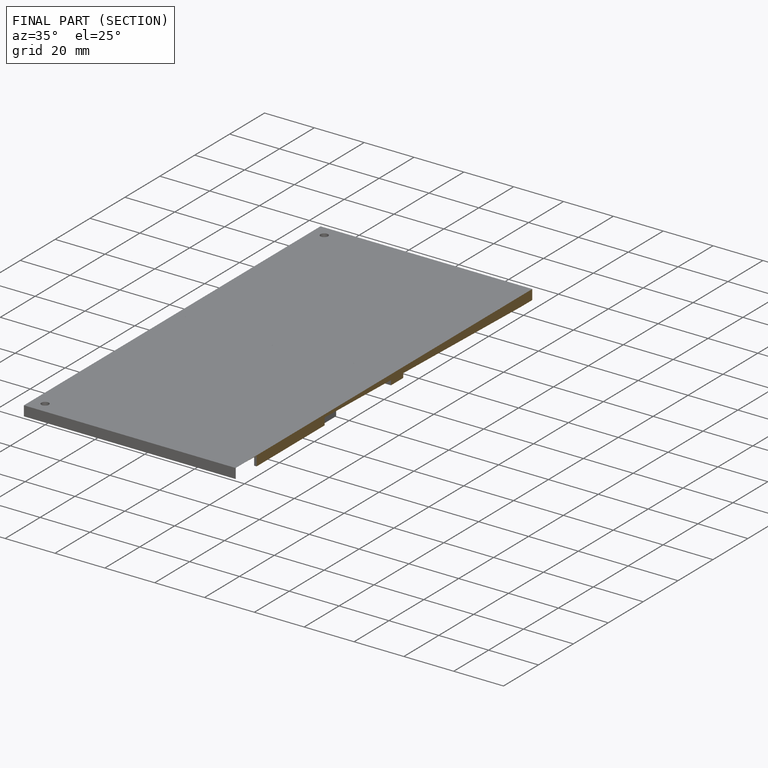
[diagram: finished part — half-section view (interior)]
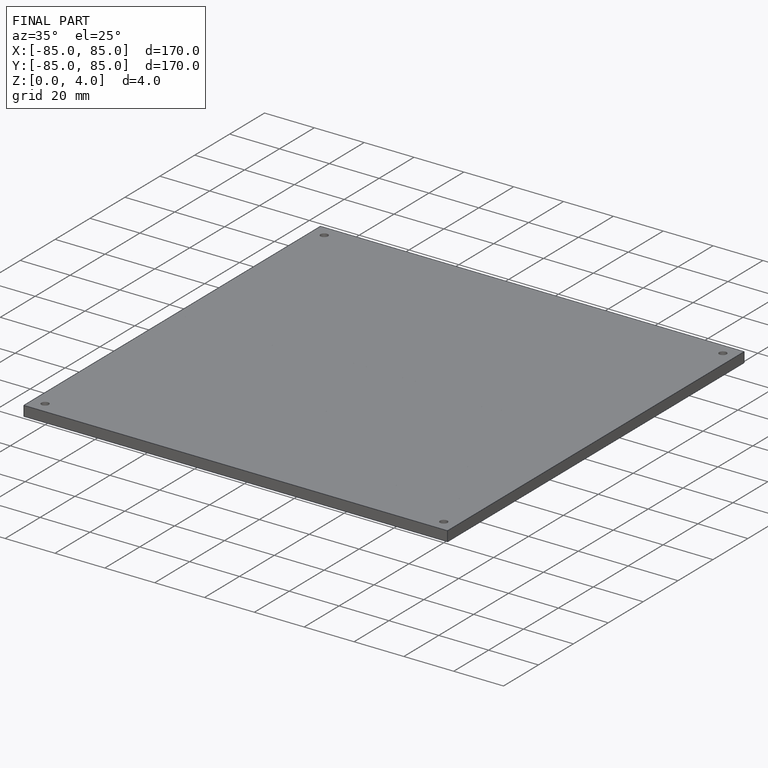
[diagram: finished part — iso view with bounding-box wireframe]
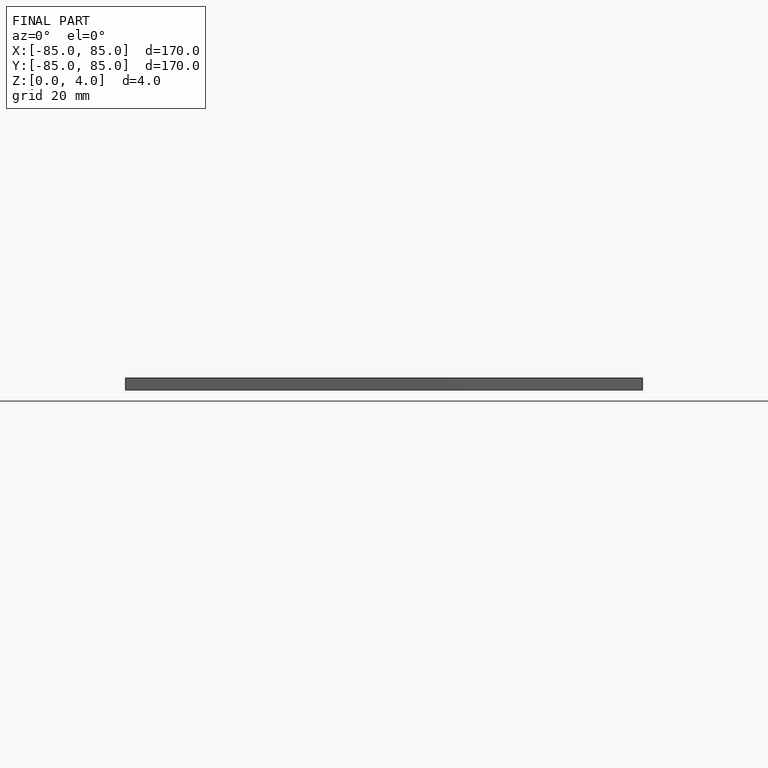
[diagram: finished part — front view with bounding-box wireframe]
